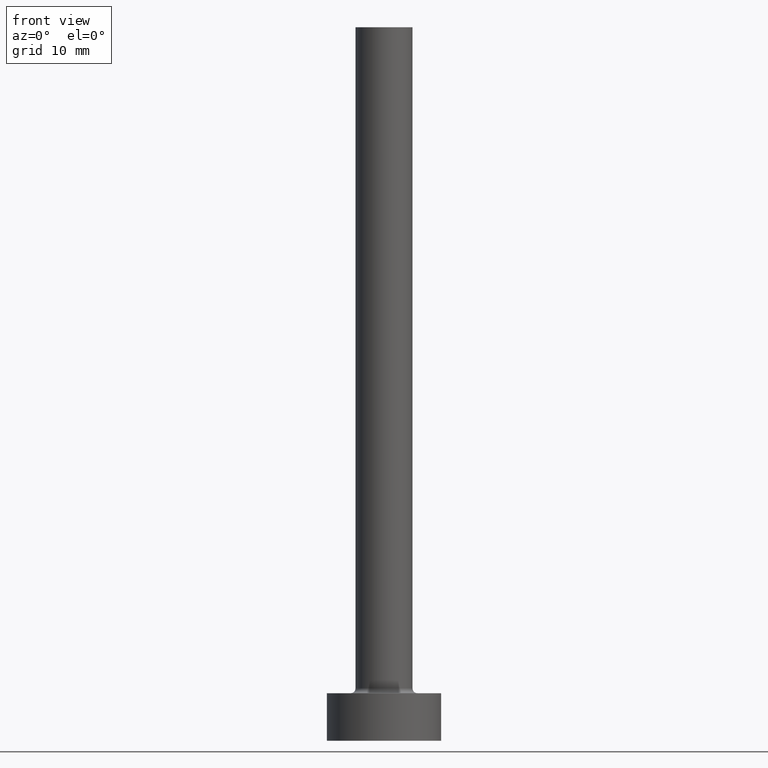
[diagram: clean part render]
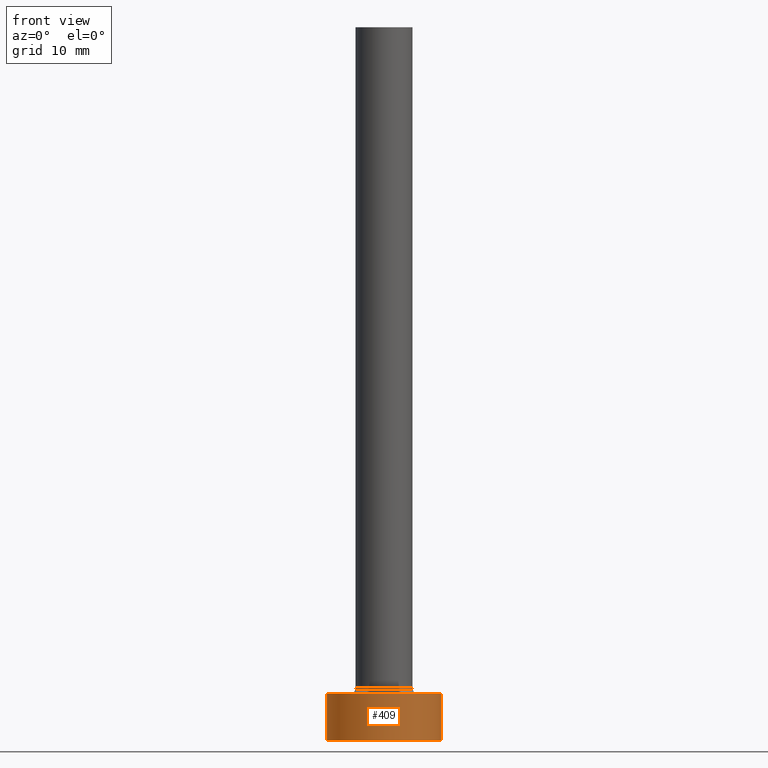
[diagram: same view with one face highlighted and labeled with its STEP entity id]
A machine part, front view. The second image highlights one B-rep face of the part: STEP entity #409.
In plain terms, the highlighted cylindrical surface (partial cylindrical patch) has radius 6 mm, axis along (-0, -0, -1).
Its self-contained STEP definition (entity closure, byte-faithful):
#8 = VECTOR ( 'NONE', #162, 1000.000000000000000 ) ;
#13 = LINE ( 'NONE', #39, #208 ) ;
#22 = CYLINDRICAL_SURFACE ( 'NONE', #172, 6.000000000000000888 ) ;
#26 = ORIENTED_EDGE ( 'NONE', *, *, #144, .T. ) ;
#31 = ORIENTED_EDGE ( 'NONE', *, *, #425, .F. ) ;
#39 = CARTESIAN_POINT ( 'NONE',  ( -6.000000000000000888, 0.000000000000000000, 5.000000000000000000 ) ) ;
#66 = EDGE_CURVE ( 'NONE', #230, #136, #90, .T. ) ;
#90 = LINE ( 'NONE', #190, #8 ) ;
#93 = CARTESIAN_POINT ( 'NONE',  ( 6.000000000000000888, 7.347880794884120722E-16, 5.000000000000000000 ) ) ;
#97 = DIRECTION ( 'NONE',  ( -1.000000000000000000, 0.000000000000000000, 0.000000000000000000 ) ) ;
#100 = EDGE_CURVE ( 'NONE', #259, #136, #163, .T. ) ;
#136 = VERTEX_POINT ( 'NONE', #434 ) ;
#144 = EDGE_CURVE ( 'NONE', #278, #259, #13, .T. ) ;
#149 = AXIS2_PLACEMENT_3D ( 'NONE', #267, #411, #235 ) ;
#153 = AXIS2_PLACEMENT_3D ( 'NONE', #359, #330, #297 ) ;
#162 = DIRECTION ( 'NONE',  ( -0.000000000000000000, -0.000000000000000000, -1.000000000000000000 ) ) ;
#163 = CIRCLE ( 'NONE', #153, 6.000000000000000888 ) ;
#168 = CARTESIAN_POINT ( 'NONE',  ( 0.000000000000000000, 0.000000000000000000, 5.000000000000000000 ) ) ;
#172 = AXIS2_PLACEMENT_3D ( 'NONE', #168, #415, #97 ) ;
#190 = CARTESIAN_POINT ( 'NONE',  ( 6.000000000000000888, 7.347880794884120722E-16, 5.000000000000000000 ) ) ;
#195 = ORIENTED_EDGE ( 'NONE', *, *, #66, .F. ) ;
#208 = VECTOR ( 'NONE', #298, 1000.000000000000000 ) ;
#230 = VERTEX_POINT ( 'NONE', #93 ) ;
#235 = DIRECTION ( 'NONE',  ( 1.000000000000000000, 0.000000000000000000, 0.000000000000000000 ) ) ;
#251 = ORIENTED_EDGE ( 'NONE', *, *, #100, .T. ) ;
#259 = VERTEX_POINT ( 'NONE', #405 ) ;
#267 = CARTESIAN_POINT ( 'NONE',  ( 0.000000000000000000, 0.000000000000000000, 5.000000000000000000 ) ) ;
#272 = CIRCLE ( 'NONE', #149, 6.000000000000000888 ) ;
#278 = VERTEX_POINT ( 'NONE', #410 ) ;
#297 = DIRECTION ( 'NONE',  ( 1.000000000000000000, 0.000000000000000000, 0.000000000000000000 ) ) ;
#298 = DIRECTION ( 'NONE',  ( -0.000000000000000000, -0.000000000000000000, -1.000000000000000000 ) ) ;
#330 = DIRECTION ( 'NONE',  ( 0.000000000000000000, 0.000000000000000000, 1.000000000000000000 ) ) ;
#334 = FACE_OUTER_BOUND ( 'NONE', #454, .T. ) ;
#359 = CARTESIAN_POINT ( 'NONE',  ( 0.000000000000000000, 0.000000000000000000, 0.000000000000000000 ) ) ;
#405 = CARTESIAN_POINT ( 'NONE',  ( -6.000000000000000888, 0.000000000000000000, 0.000000000000000000 ) ) ;
#409 = ADVANCED_FACE ( 'NONE', ( #334 ), #22, .T. ) ;
#410 = CARTESIAN_POINT ( 'NONE',  ( -6.000000000000000888, 0.000000000000000000, 5.000000000000000000 ) ) ;
#411 = DIRECTION ( 'NONE',  ( 0.000000000000000000, 0.000000000000000000, 1.000000000000000000 ) ) ;
#415 = DIRECTION ( 'NONE',  ( -0.000000000000000000, -0.000000000000000000, -1.000000000000000000 ) ) ;
#425 = EDGE_CURVE ( 'NONE', #278, #230, #272, .T. ) ;
#434 = CARTESIAN_POINT ( 'NONE',  ( 6.000000000000000888, 7.347880794884120722E-16, 0.000000000000000000 ) ) ;
#454 = EDGE_LOOP ( 'NONE', ( #195, #31, #26, #251 ) ) ;